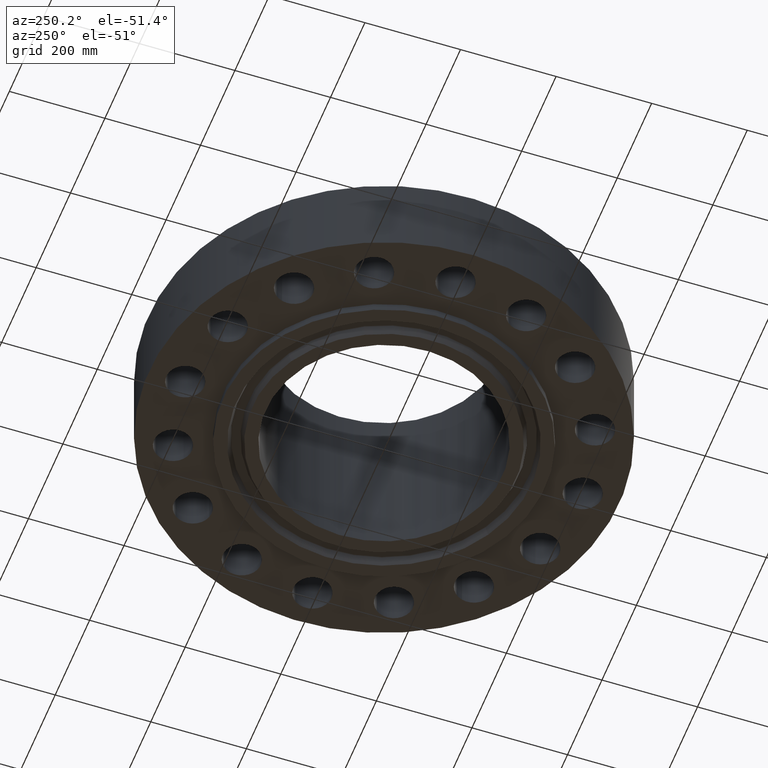
[diagram: clean part render]
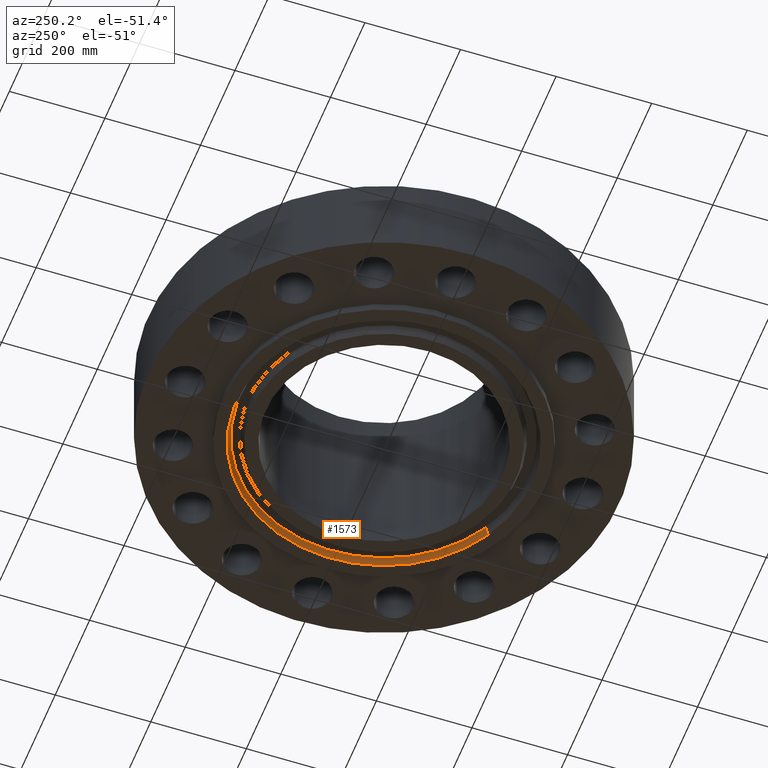
[diagram: same view with one face highlighted and labeled with its STEP entity id]
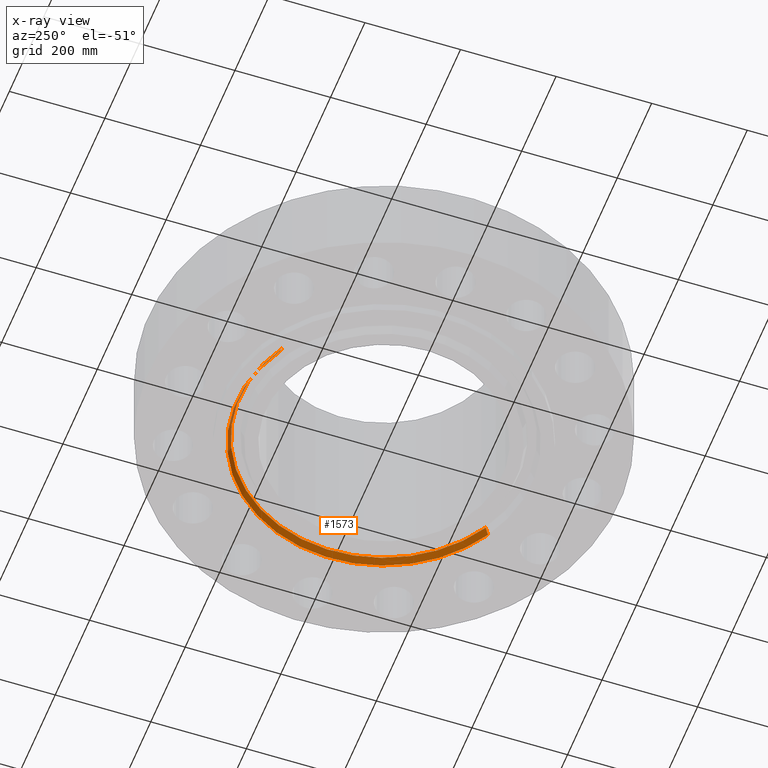
[diagram: x-ray of the same camera — body ghosted, the highlighted face saturated]
A machine part, auxiliary view. The second image highlights one B-rep face of the part: STEP entity #1573.
The next image is the same camera in x-ray: the body ghosted, the highlighted face saturated — about 0% of this face is hidden behind the body in this view.
In plain terms, the highlighted conical surface has half-angle 23 deg.
Its self-contained STEP definition (entity closure, byte-faithful):
#1434=AXIS2_PLACEMENT_3D('Circle Axis2P3D',#1432,#1433,$) ;
#1508=AXIS2_PLACEMENT_3D('Cone Axis2P3D',#1505,#1506,#1507) ;
#1529=AXIS2_PLACEMENT_3D('Circle Axis2P3D',#1527,#1528,$) ;
#1427=CARTESIAN_POINT('Vertex',(5.82813656007,-10.6683324137,-0.688000000003)) ;
#1429=CARTESIAN_POINT('Vertex',(-5.82813656007,10.6683324137,-0.688000000003)) ;
#1432=CARTESIAN_POINT('Axis2P3D Location',(-5.59482469102E-016,3.35689481461E-015,-0.688000000003)) ;
#1474=CARTESIAN_POINT('Vertex',(-5.69978069889,10.4333785858,-0.0572712739222)) ;
#1476=CARTESIAN_POINT('Vertex',(5.69978069889,-10.4333785858,-0.0572712739222)) ;
#1505=CARTESIAN_POINT('Axis2P3D Location',(0.,0.,-0.0572712739222)) ;
#1510=CARTESIAN_POINT('Line Origine',(-5.76395862948,10.5508554997,-0.372635636962)) ;
#1515=CARTESIAN_POINT('Line Origine',(5.76395862948,-10.5508554997,-0.372635636962)) ;
#1527=CARTESIAN_POINT('Axis2P3D Location',(0.,0.,-0.0572712739222)) ;
#1433=DIRECTION('Axis2P3D Direction',(0.,0.,-0.0393700787402)) ;
#1506=DIRECTION('Axis2P3D Direction',(-0.,-0.,-0.0393700787402)) ;
#1507=DIRECTION('Axis2P3D XDirection',(-0.0188750212049,0.0345504945626,0.)) ;
#1511=DIRECTION('Vector Direction',(-0.00737505833565,0.0134999537303,-0.0362403485611)) ;
#1516=DIRECTION('Vector Direction',(0.00737505833565,-0.0134999537303,-0.0362403485611)) ;
#1528=DIRECTION('Axis2P3D Direction',(0.,0.,0.0393700787402)) ;
#1512=VECTOR('Line Direction',#1511,0.0393700787402) ;
#1517=VECTOR('Line Direction',#1516,0.0393700787402) ;
#1568=ORIENTED_EDGE('',*,*,#1436,.T.) ;
#1569=ORIENTED_EDGE('',*,*,#1519,.T.) ;
#1570=ORIENTED_EDGE('',*,*,#1531,.T.) ;
#1571=ORIENTED_EDGE('',*,*,#1514,.F.) ;
#1573=ADVANCED_FACE('PartBody',(#1572),#1509,.F.) ;
#1435=CIRCLE('generated circle',#1434,12.1565) ;
#1530=CIRCLE('generated circle',#1529,11.88877154) ;
#1509=CONICAL_SURFACE('Cone',#1508,11.88877154,0.401425727959) ;
#1436=EDGE_CURVE('',#1430,#1428,#1435,.T.) ;
#1514=EDGE_CURVE('',#1430,#1475,#1513,.F.) ;
#1519=EDGE_CURVE('',#1428,#1477,#1518,.F.) ;
#1531=EDGE_CURVE('',#1477,#1475,#1530,.T.) ;
#1567=EDGE_LOOP('',(#1568,#1569,#1570,#1571)) ;
#1572=FACE_OUTER_BOUND('',#1567,.T.) ;
#1513=LINE('Line',#1510,#1512) ;
#1518=LINE('Line',#1515,#1517) ;
#1428=VERTEX_POINT('',#1427) ;
#1430=VERTEX_POINT('',#1429) ;
#1475=VERTEX_POINT('',#1474) ;
#1477=VERTEX_POINT('',#1476) ;